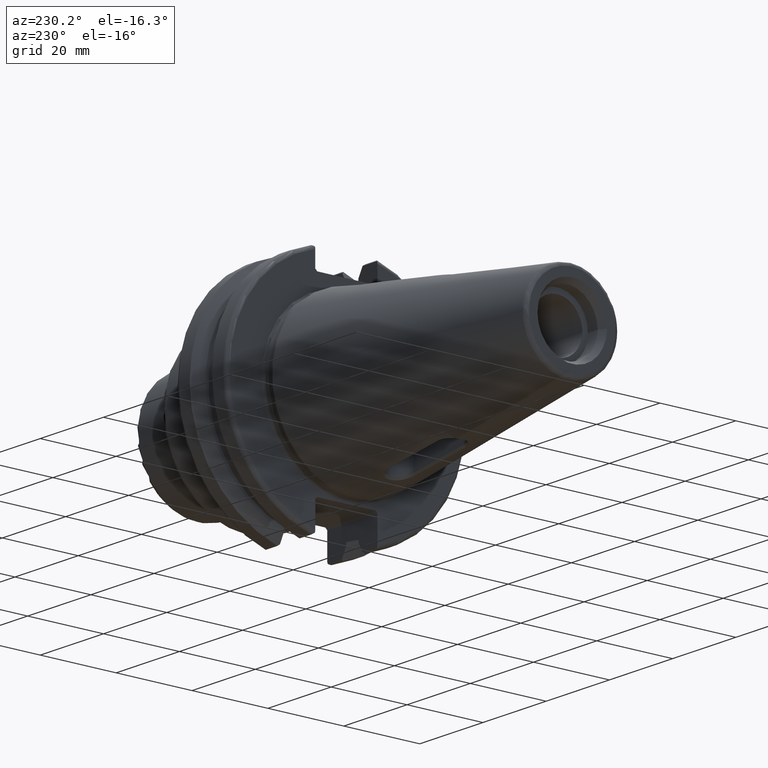
[diagram: clean part render]
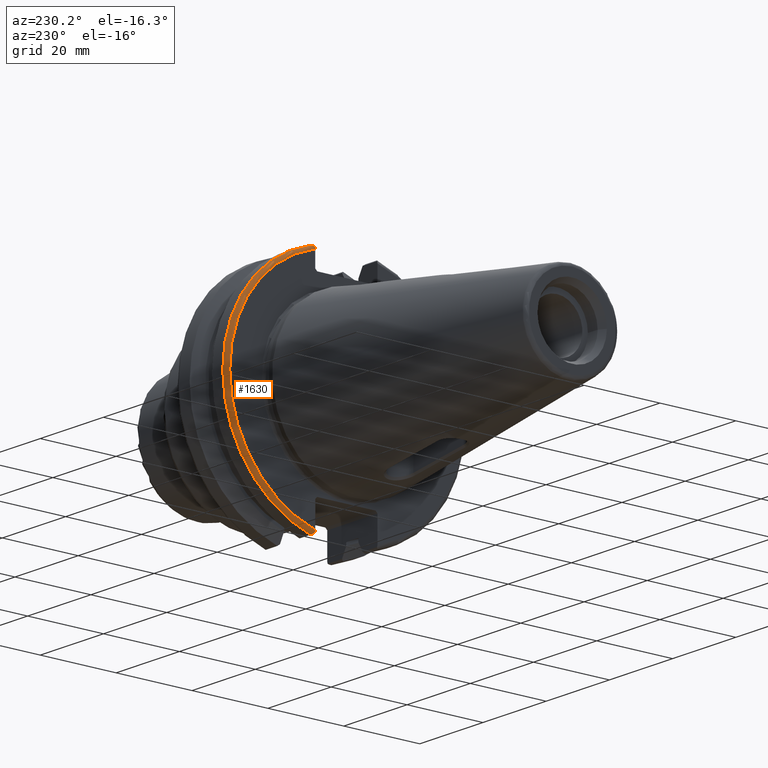
[diagram: same view with one face highlighted and labeled with its STEP entity id]
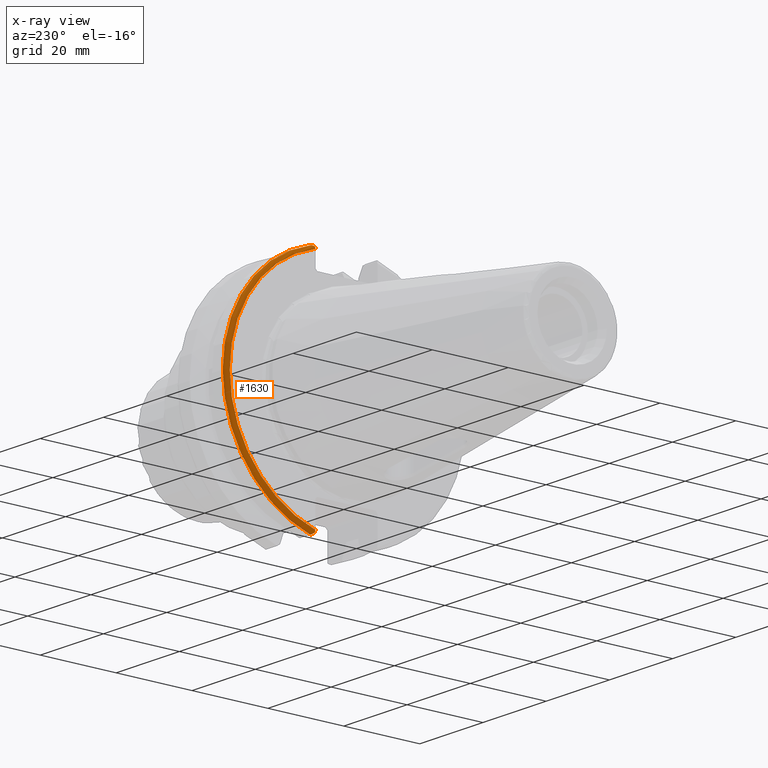
[diagram: x-ray of the same camera — body ghosted, the highlighted face saturated]
A machine part, auxiliary view. The second image highlights one B-rep face of the part: STEP entity #1630.
The next image is the same camera in x-ray: the body ghosted, the highlighted face saturated — about 0% of this face is hidden behind the body in this view.
In plain terms, the highlighted toroidal blend (fillet) surface has major radius 30.75 mm and minor (blend) radius 1 mm.
Its self-contained STEP definition (entity closure, byte-faithful):
#98=B_SPLINE_CURVE_WITH_KNOTS('',3,(#3227,#3228,#3229,#3230,#3231,#3232),
 .UNSPECIFIED.,.F.,.F.,(4,2,4),(0.0977210450333169,0.111963554372601,0.150804064902975),
 .UNSPECIFIED.);
#107=B_SPLINE_CURVE_WITH_KNOTS('',3,(#3371,#3372,#3373,#3374,#3375,#3376,
#3377,#3378),.UNSPECIFIED.,.F.,.F.,(4,2,2,4),(-0.104180282751876,-0.072978474246144,
-0.0343524753874979,0.),.UNSPECIFIED.);
#108=B_SPLINE_CURVE_WITH_KNOTS('',3,(#3381,#3382,#3383,#3384,#3385,#3386,
#3387,#3388),.UNSPECIFIED.,.F.,.F.,(4,2,2,4),(0.,0.0343524753874975,0.0729784742461445,
0.104180282751877),.UNSPECIFIED.);
#109=B_SPLINE_CURVE_WITH_KNOTS('',3,(#3389,#3390,#3391,#3392,#3393,#3394),
 .UNSPECIFIED.,.F.,.F.,(4,2,4),(0.452741154494498,0.491581665024872,0.505824174364157),
 .UNSPECIFIED.);
#137=TOROIDAL_SURFACE('',#1774,30.75,1.);
#238=FACE_OUTER_BOUND('',#334,.T.);
#334=EDGE_LOOP('',(#1407,#1408,#1409,#1410,#1411,#1412));
#623=CIRCLE('',#1757,30.75);
#629=CIRCLE('',#1775,31.75);
#749=VERTEX_POINT('',#3165);
#750=VERTEX_POINT('',#3167);
#762=VERTEX_POINT('',#3226);
#790=VERTEX_POINT('',#3369);
#791=VERTEX_POINT('',#3370);
#792=VERTEX_POINT('',#3379);
#957=EDGE_CURVE('',#750,#749,#623,.T.);
#974=EDGE_CURVE('',#762,#750,#98,.T.);
#1012=EDGE_CURVE('',#790,#791,#107,.T.);
#1013=EDGE_CURVE('',#791,#792,#629,.T.);
#1014=EDGE_CURVE('',#792,#762,#108,.T.);
#1015=EDGE_CURVE('',#749,#790,#109,.T.);
#1407=ORIENTED_EDGE('',*,*,#1012,.T.);
#1408=ORIENTED_EDGE('',*,*,#1013,.T.);
#1409=ORIENTED_EDGE('',*,*,#1014,.T.);
#1410=ORIENTED_EDGE('',*,*,#974,.T.);
#1411=ORIENTED_EDGE('',*,*,#957,.T.);
#1412=ORIENTED_EDGE('',*,*,#1015,.T.);
#1630=ADVANCED_FACE('',(#238),#137,.T.);
#1757=AXIS2_PLACEMENT_3D('',#3168,#2028,#2029);
#1774=AXIS2_PLACEMENT_3D('',#3368,#2089,#2090);
#1775=AXIS2_PLACEMENT_3D('',#3380,#2091,#2092);
#2028=DIRECTION('center_axis',(1.,0.,0.));
#2029=DIRECTION('ref_axis',(0.,1.,1.60812264967664E-16));
#2089=DIRECTION('center_axis',(1.,0.,0.));
#2090=DIRECTION('ref_axis',(0.,0.,-1.));
#2091=DIRECTION('center_axis',(-1.,0.,0.));
#2092=DIRECTION('ref_axis',(0.,1.,1.60812264967664E-16));
#3165=CARTESIAN_POINT('',(3.175,8.19,29.6392712461019));
#3167=CARTESIAN_POINT('',(3.175,8.18999999999999,-29.6392712461019));
#3168=CARTESIAN_POINT('Origin',(3.175,0.,0.));
#3226=CARTESIAN_POINT('',(3.31912772509028,8.19,-30.1755016258903));
#3227=CARTESIAN_POINT('Ctrl Pts',(3.31912772509028,8.19,-30.1755016258903));
#3228=CARTESIAN_POINT('Ctrl Pts',(3.29318362718666,8.19,-30.131014531546));
#3229=CARTESIAN_POINT('Ctrl Pts',(3.27103565282437,8.19,-30.0852355256475));
#3230=CARTESIAN_POINT('Ctrl Pts',(3.20451443291695,8.19,-29.9212724384851));
#3231=CARTESIAN_POINT('Ctrl Pts',(3.175,8.19,-29.7687396145364));
#3232=CARTESIAN_POINT('Ctrl Pts',(3.175,8.19,-29.6392712461019));
#3368=CARTESIAN_POINT('Origin',(4.175,0.,0.));
#3369=CARTESIAN_POINT('',(3.31912772509028,8.19,30.1755016258903));
#3370=CARTESIAN_POINT('',(4.175,8.67204822802685,30.5427254764662));
#3371=CARTESIAN_POINT('Ctrl Pts',(3.31912772509028,8.19,30.1755016258903));
#3372=CARTESIAN_POINT('Ctrl Pts',(3.36755369570114,8.2703682833078,30.2367261024977));
#3373=CARTESIAN_POINT('Ctrl Pts',(3.43232973376814,8.34909446036477,30.2966996242308));
#3374=CARTESIAN_POINT('Ctrl Pts',(3.58532758094931,8.48862804755884,30.4029961692546));
#3375=CARTESIAN_POINT('Ctrl Pts',(3.70655857052286,8.56482138642532,30.4610401774263));
#3376=CARTESIAN_POINT('Ctrl Pts',(3.92668295662254,8.6471881193939,30.5237870709558));
#3377=CARTESIAN_POINT('Ctrl Pts',(4.06049174870834,8.67204822802686,30.5427254764662));
#3378=CARTESIAN_POINT('Ctrl Pts',(4.175,8.67204822802686,30.5427254764662));
#3379=CARTESIAN_POINT('',(4.175,8.67204822802685,-30.5427254764662));
#3380=CARTESIAN_POINT('Origin',(4.175,0.,0.));
#3381=CARTESIAN_POINT('Ctrl Pts',(4.175,8.67204822802685,-30.5427254764662));
#3382=CARTESIAN_POINT('Ctrl Pts',(4.06049174870834,8.67204822802685,-30.5427254764662));
#3383=CARTESIAN_POINT('Ctrl Pts',(3.92668295662254,8.6471881193939,-30.5237870709558));
#3384=CARTESIAN_POINT('Ctrl Pts',(3.70655857052286,8.56482138642533,-30.4610401774263));
#3385=CARTESIAN_POINT('Ctrl Pts',(3.58532758094931,8.48862804755884,-30.4029961692546));
#3386=CARTESIAN_POINT('Ctrl Pts',(3.43232973376814,8.34909446036477,-30.2966996242308));
#3387=CARTESIAN_POINT('Ctrl Pts',(3.36755369570113,8.2703682833078,-30.2367261024977));
#3388=CARTESIAN_POINT('Ctrl Pts',(3.31912772509028,8.18999999999999,-30.1755016258903));
#3389=CARTESIAN_POINT('Ctrl Pts',(3.175,8.19,29.6392712461018));
#3390=CARTESIAN_POINT('Ctrl Pts',(3.175,8.19,29.7687396145364));
#3391=CARTESIAN_POINT('Ctrl Pts',(3.20451443291695,8.19,29.9212724384851));
#3392=CARTESIAN_POINT('Ctrl Pts',(3.27103565282437,8.19,30.0852355256475));
#3393=CARTESIAN_POINT('Ctrl Pts',(3.29318362718666,8.19,30.131014531546));
#3394=CARTESIAN_POINT('Ctrl Pts',(3.31912772509028,8.19,30.1755016258903));